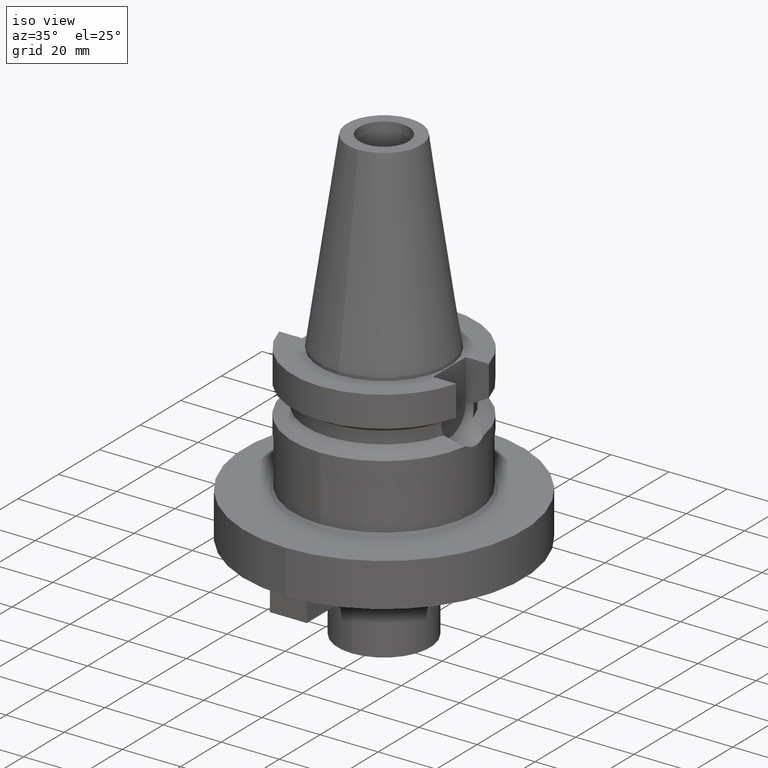
[diagram: clean part render]
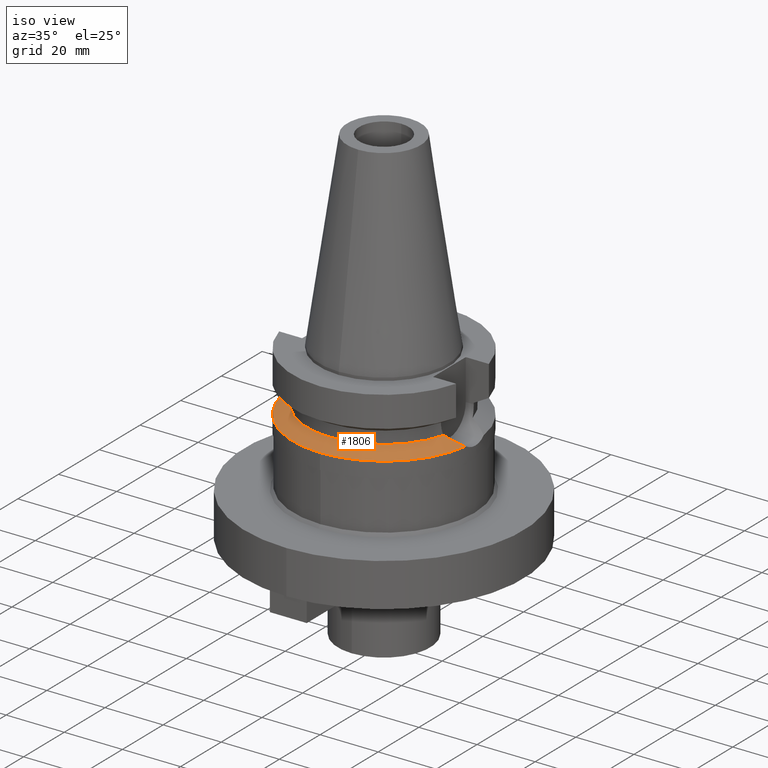
[diagram: same view with one face highlighted and labeled with its STEP entity id]
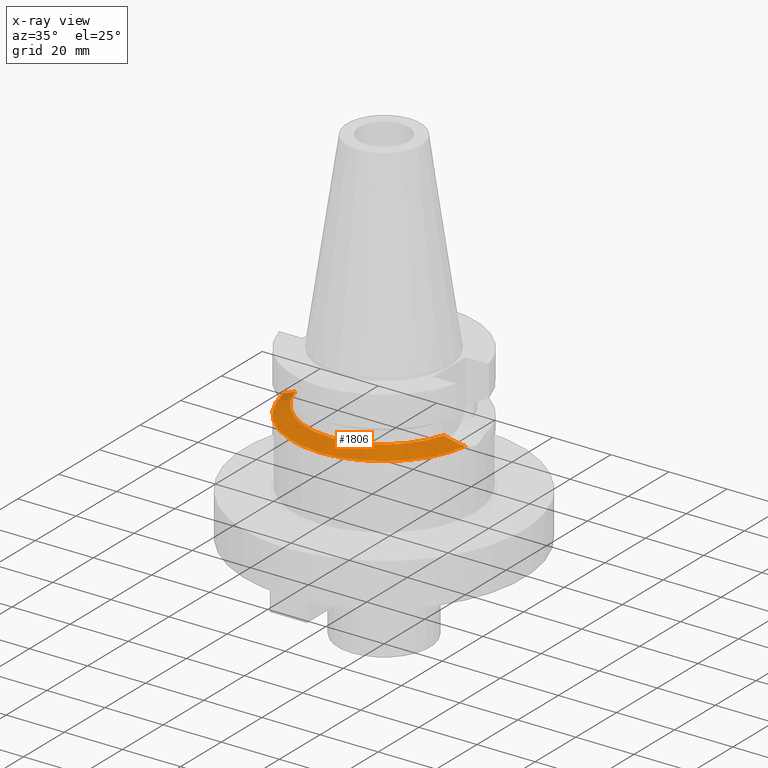
[diagram: x-ray of the same camera — body ghosted, the highlighted face saturated]
A machine part, iso view. The second image highlights one B-rep face of the part: STEP entity #1806.
The next image is the same camera in x-ray: the body ghosted, the highlighted face saturated — about 2% of this face is hidden behind the body in this view.
In plain terms, the highlighted conical surface has half-angle 60 deg.
Its self-contained STEP definition (entity closure, byte-faithful):
#458=CARTESIAN_POINT('',(-3.117899877609E1,-4.485536235554E0,
-2.163449434733E1));
#459=CARTESIAN_POINT('',(-3.065651177045E1,-4.881930744595E0,
-2.136849936828E1));
#460=CARTESIAN_POINT('',(-2.952594017163E1,-5.593400767400E0,
-2.079247473830E1));
#461=CARTESIAN_POINT('',(-2.754904441967E1,-6.480598214428E0,
-1.978260102202E1));
#462=CARTESIAN_POINT('',(-2.621284577904E1,-6.910641166650E0,
-1.909765326165E1));
#463=CARTESIAN_POINT('',(-2.553175183775E1,-7.097862220093E0,
-1.874774300139E1));
#468=CARTESIAN_POINT('',(0.E0,0.E0,-1.874774300139E1));
#469=DIRECTION('',(0.E0,0.E0,1.E0));
#470=DIRECTION('',(-9.634623335001E-1,-2.678438573620E-1,0.E0));
#471=AXIS2_PLACEMENT_3D('',#468,#469,#470);
#476=CARTESIAN_POINT('',(0.E0,0.E0,-1.874774300139E1));
#477=DIRECTION('',(0.E0,0.E0,1.E0));
#478=DIRECTION('',(0.E0,-1.E0,0.E0));
#479=AXIS2_PLACEMENT_3D('',#476,#477,#478);
#484=CARTESIAN_POINT('',(2.553175183775E1,-7.097862220093E0,-1.874774300139E1));
#485=CARTESIAN_POINT('',(2.604113802148E1,-6.957840686871E0,-1.900943884292E1));
#486=CARTESIAN_POINT('',(2.700450142199E1,-6.656167933220E0,-1.950350260824E1));
#487=CARTESIAN_POINT('',(2.827674063605E1,-6.158684107118E0,-2.015436869184E1));
#488=CARTESIAN_POINT('',(2.939374546065E1,-5.625675897742E0,-2.072474627868E1));
#489=CARTESIAN_POINT('',(3.036362910302E1,-5.067282306059E0,-2.121927727283E1));
#490=CARTESIAN_POINT('',(3.092216356269E1,-4.680389059113E0,-2.150374109133E1));
#491=CARTESIAN_POINT('',(3.117899877609E1,-4.485536235554E0,-2.163449434733E1));
#496=CARTESIAN_POINT('',(0.E0,0.E0,-2.163449434733E1));
#497=DIRECTION('',(0.E0,0.E0,-1.E0));
#498=DIRECTION('',(9.898094849553E-1,-1.423979757319E-1,0.E0));
#499=AXIS2_PLACEMENT_3D('',#496,#497,#498);
#504=CARTESIAN_POINT('',(0.E0,0.E0,-2.163449434733E1));
#505=DIRECTION('',(0.E0,0.E0,-1.E0));
#506=DIRECTION('',(0.E0,-1.E0,0.E0));
#507=AXIS2_PLACEMENT_3D('',#504,#505,#506);
#526=CARTESIAN_POINT('',(3.117899877609E1,-4.485536235554E0,-2.163449434733E1));
#1355=VERTEX_POINT('',#526);
#1358=CARTESIAN_POINT('',(0.E0,-3.15E1,-2.163449434733E1));
#1359=VERTEX_POINT('',#1358);
#1360=VERTEX_POINT('',#484);
#1371=VERTEX_POINT('',#458);
#1372=VERTEX_POINT('',#463);
#1373=CARTESIAN_POINT('',(0.E0,-2.65E1,-1.874774300139E1));
#1374=VERTEX_POINT('',#1373);
#1790=CARTESIAN_POINT('',(0.E0,0.E0,-2.019111867436E1));
#1791=DIRECTION('',(0.E0,0.E0,-1.E0));
#1792=DIRECTION('',(0.E0,-1.E0,0.E0));
#1793=AXIS2_PLACEMENT_3D('',#1790,#1791,#1792);
#1794=CONICAL_SURFACE('',#1793,2.9E1,6.E1);
#1795=ORIENTED_EDGE('',*,*,#1775,.T.);
#1796=ORIENTED_EDGE('',*,*,#1611,.T.);
#1797=ORIENTED_EDGE('',*,*,#1609,.T.);
#1799=ORIENTED_EDGE('',*,*,#1798,.T.);
#1801=ORIENTED_EDGE('',*,*,#1800,.T.);
#1803=ORIENTED_EDGE('',*,*,#1802,.T.);
#1804=EDGE_LOOP('',(#1795,#1796,#1797,#1799,#1801,#1803));
#1805=FACE_OUTER_BOUND('',#1804,.F.);
#464=B_SPLINE_CURVE_WITH_KNOTS('',3,(#458,#459,#460,#461,#462,#463),
.UNSPECIFIED.,.F.,.F.,(4,1,1,4),(0.E0,3.333333333333E-1,6.666666666667E-1,1.E0),
.UNSPECIFIED.);
#472=CIRCLE('',#471,2.65E1);
#480=CIRCLE('',#479,2.65E1);
#492=B_SPLINE_CURVE_WITH_KNOTS('',3,(#484,#485,#486,#487,#488,#489,#490,#491),
.UNSPECIFIED.,.F.,.F.,(4,1,1,1,1,4),(0.E0,2.E-1,4.E-1,6.E-1,8.E-1,1.E0),
.UNSPECIFIED.);
#500=CIRCLE('',#499,3.15E1);
#508=CIRCLE('',#507,3.15E1);
#1609=EDGE_CURVE('',#1374,#1360,#480,.T.);
#1611=EDGE_CURVE('',#1372,#1374,#472,.T.);
#1775=EDGE_CURVE('',#1371,#1372,#464,.T.);
#1798=EDGE_CURVE('',#1360,#1355,#492,.T.);
#1800=EDGE_CURVE('',#1355,#1359,#500,.T.);
#1802=EDGE_CURVE('',#1359,#1371,#508,.T.);
#1806=ADVANCED_FACE('',(#1805),#1794,.T.);